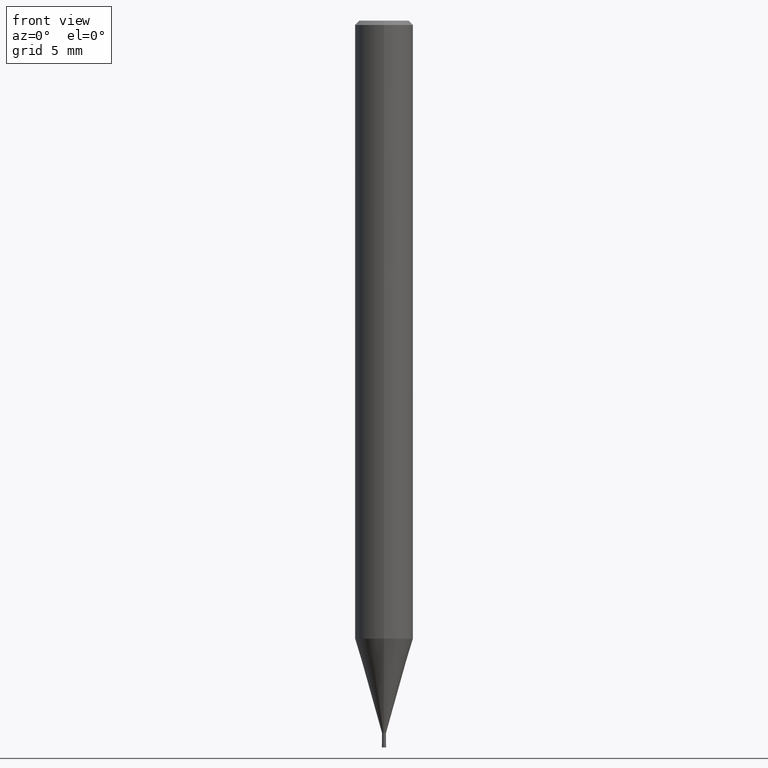
[diagram: clean part render]
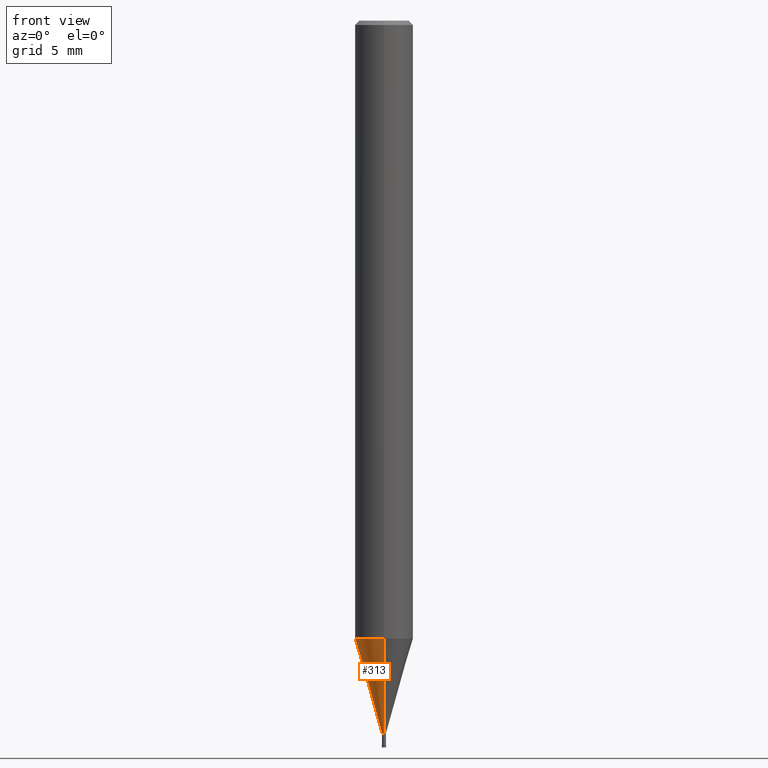
[diagram: same view with one face highlighted and labeled with its STEP entity id]
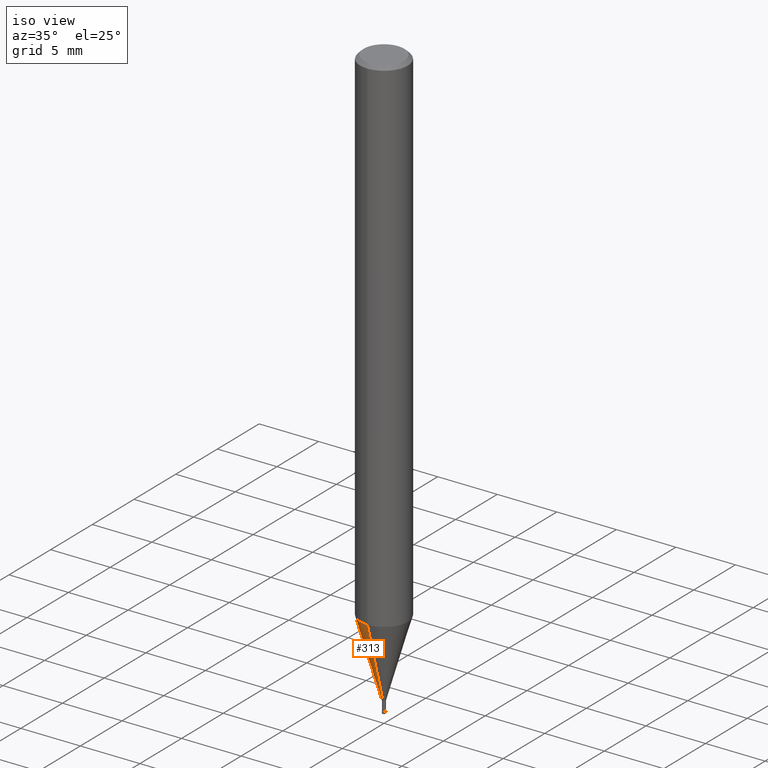
[diagram: same view with one face highlighted and labeled with its STEP entity id]
A machine part, front view. The second image highlights one B-rep face of the part: STEP entity #313.
A second angle (iso view) of the same face is appended — the face is thin or edge-on in the first view.
In plain terms, the highlighted conical surface has half-angle 15.999 deg.
Its self-contained STEP definition (entity closure, byte-faithful):
#161=VERTEX_POINT('',#402);
#163=EDGE_CURVE('',#161,#259,#404,.T.);
#237=EDGE_CURVE('',#259,#343,#485,.T.);
#239=EDGE_CURVE('',#343,#335,#487,.T.);
#259=VERTEX_POINT('',#509);
#291=EDGE_CURVE('',#161,#335,#547,.T.);
#313=ADVANCED_FACE('',(#573),#574,.T.);
#335=VERTEX_POINT('',#599);
#343=VERTEX_POINT('',#607);
#402=CARTESIAN_POINT('',(1.71383659217442E-017,-0.13995,-48.99));
#404=LINE('',#669,#670);
#485=CIRCLE('',#774,1.99995);
#487=LINE('',#777,#778);
#509=CARTESIAN_POINT('',(2.44915147732706E-016,-1.99995,-42.503));
#547=CIRCLE('',#853,0.13995);
#573=FACE_OUTER_BOUND('',#884,.T.);
#574=CONICAL_SURFACE('',#885,1.06995,0.27923596926092);
#599=CARTESIAN_POINT('',(0.0,0.13995,-48.99));
#607=CARTESIAN_POINT('',(0.0,1.99995,-42.503));
#669=CARTESIAN_POINT('',(1.31026756827225E-016,-1.06995,-45.7465));
#670=VECTOR('',#994,1.0);
#774=AXIS2_PLACEMENT_3D('',#1094,#1095,#1096);
#777=CARTESIAN_POINT('',(-1.31026756827225E-016,1.06995,-45.7465));
#778=VECTOR('',#1097,1.0);
#853=AXIS2_PLACEMENT_3D('',#1181,#1182,#1183);
#884=EDGE_LOOP('',(#1214,#1215,#1216,#1217));
#885=AXIS2_PLACEMENT_3D('',#1218,#1219,#1220);
#994=DIRECTION('',(3.37527585527933E-017,-0.275621292078393,0.961266301995986));
#1094=CARTESIAN_POINT('',(0.0,0.0,-42.503));
#1095=DIRECTION('',(0.0,0.0,-1.0));
#1096=DIRECTION('',(0.0,1.0,0.0));
#1097=DIRECTION('',(3.37527585527933E-017,-0.275621292078393,-0.961266301995986));
#1181=CARTESIAN_POINT('',(0.0,0.0,-48.99));
#1182=DIRECTION('',(0.0,0.0,-1.0));
#1183=DIRECTION('',(0.0,1.0,0.0));
#1214=ORIENTED_EDGE('',*,*,#239,.T.);
#1215=ORIENTED_EDGE('',*,*,#291,.F.);
#1216=ORIENTED_EDGE('',*,*,#163,.T.);
#1217=ORIENTED_EDGE('',*,*,#237,.T.);
#1218=CARTESIAN_POINT('',(0.0,0.0,-45.7465));
#1219=DIRECTION('',(-0.0,-0.0,1.0));
#1220=DIRECTION('',(0.0,1.0,0.0));